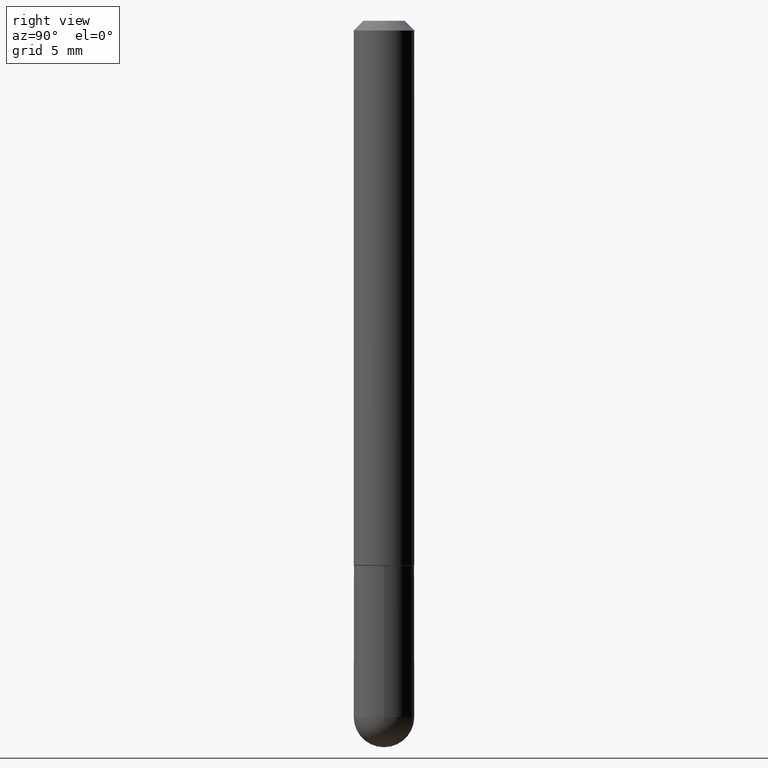
[diagram: clean part render]
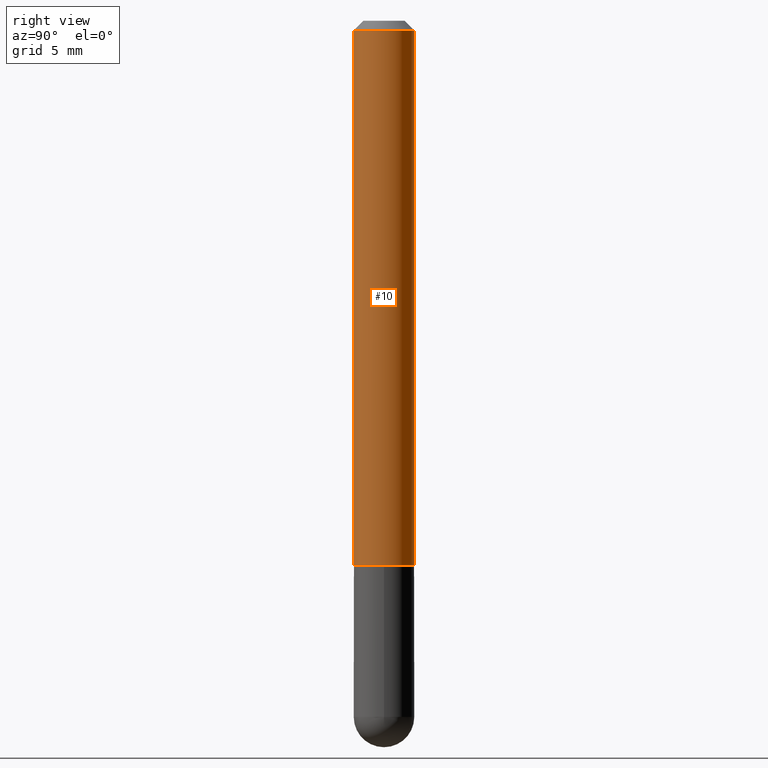
[diagram: same view with one face highlighted and labeled with its STEP entity id]
A machine part, right view. The second image highlights one B-rep face of the part: STEP entity #10.
In plain terms, the highlighted cylindrical surface (edge-blend (fillet) strip) has radius 1.5875 mm, axis along (-0, 0, 1).
Its self-contained STEP definition (entity closure, byte-faithful):
#6 = CIRCLE ( 'NONE', #140, 0.06250000000000005551 ) ;
#10 = ADVANCED_FACE ( 'NONE', ( #366 ), #310, .T. ) ;
#16 = EDGE_CURVE ( 'NONE', #294, #335, #121, .T. ) ;
#19 = ORIENTED_EDGE ( 'NONE', *, *, #321, .F. ) ;
#42 = LINE ( 'NONE', #203, #337 ) ;
#48 = ORIENTED_EDGE ( 'NONE', *, *, #231, .T. ) ;
#53 = EDGE_LOOP ( 'NONE', ( #48, #254, #327, #19 ) ) ;
#83 = CARTESIAN_POINT ( 'NONE',  ( 4.364351673553917187E-16, 0.06249999999999988204, -0.02000000000000028491 ) ) ;
#85 = DIRECTION ( 'NONE',  ( -6.982962677686265922E-15, -1.000000000000000000, 3.483106191921938315E-15 ) ) ;
#113 = CARTESIAN_POINT ( 'NONE',  ( -4.364351673553642565E-16, -0.06250000000000394129, -1.123999999999999888 ) ) ;
#118 = VECTOR ( 'NONE', #186, 39.37007874015748143 ) ;
#121 = LINE ( 'NONE', #222, #118 ) ;
#140 = AXIS2_PLACEMENT_3D ( 'NONE', #232, #200, #316 ) ;
#157 = DIRECTION ( 'NONE',  ( -2.466183177392588152E-29, 3.461817180285283687E-15, 1.000000000000000000 ) ) ;
#171 = DIRECTION ( 'NONE',  ( -2.466183177392588152E-29, 3.461817180285283687E-15, 1.000000000000000000 ) ) ;
#186 = DIRECTION ( 'NONE',  ( -2.466183177392588152E-29, 3.461817180285283687E-15, 1.000000000000000000 ) ) ;
#200 = DIRECTION ( 'NONE',  ( -2.466183177392588152E-29, 3.461817180285283687E-15, 1.000000000000000000 ) ) ;
#203 = CARTESIAN_POINT ( 'NONE',  ( -4.364351673553916201E-16, -0.06250000000000000000, 2.163635737678302058E-16 ) ) ;
#208 = DIRECTION ( 'NONE',  ( -2.466183177392588152E-29, 3.461817180285283687E-15, 1.000000000000000000 ) ) ;
#216 = AXIS2_PLACEMENT_3D ( 'NONE', #361, #208, #85 ) ;
#222 = CARTESIAN_POINT ( 'NONE',  ( 4.440892098500625669E-16, 0.06250000000000000000, -2.163635737678302058E-16 ) ) ;
#226 = CIRCLE ( 'NONE', #216, 0.06249999999999995143 ) ;
#227 = DIRECTION ( 'NONE',  ( -6.982962677686265922E-15, -1.000000000000000000, 3.461817180285283292E-15 ) ) ;
#231 = EDGE_CURVE ( 'NONE', #329, #294, #6, .T. ) ;
#232 = CARTESIAN_POINT ( 'NONE',  ( 2.771989891389269485E-29, -3.891082510640658844E-15, -1.124000000000000110 ) ) ;
#233 = CARTESIAN_POINT ( 'NONE',  ( 4.440892098500769143E-16, 0.06249999999999615585, -1.124000000000000332 ) ) ;
#254 = ORIENTED_EDGE ( 'NONE', *, *, #16, .T. ) ;
#274 = CARTESIAN_POINT ( 'NONE',  ( 0.000000000000000000, 0.000000000000000000, 0.000000000000000000 ) ) ;
#294 = VERTEX_POINT ( 'NONE', #233 ) ;
#301 = CARTESIAN_POINT ( 'NONE',  ( -4.287811248607198352E-16, -0.06250000000000001388, -0.01999999999999985123 ) ) ;
#310 = CYLINDRICAL_SURFACE ( 'NONE', #348, 0.06250000000000000000 ) ;
#316 = DIRECTION ( 'NONE',  ( -6.982962677686265133E-15, -1.000000000000000000, 4.370956789862817205E-15 ) ) ;
#321 = EDGE_CURVE ( 'NONE', #329, #362, #42, .T. ) ;
#327 = ORIENTED_EDGE ( 'NONE', *, *, #356, .F. ) ;
#329 = VERTEX_POINT ( 'NONE', #113 ) ;
#335 = VERTEX_POINT ( 'NONE', #83 ) ;
#337 = VECTOR ( 'NONE', #171, 39.37007874015748143 ) ;
#348 = AXIS2_PLACEMENT_3D ( 'NONE', #274, #157, #227 ) ;
#356 = EDGE_CURVE ( 'NONE', #362, #335, #226, .T. ) ;
#361 = CARTESIAN_POINT ( 'NONE',  ( 4.932366354785193785E-31, -6.923634360570589906E-17, -0.02000000000000006981 ) ) ;
#362 = VERTEX_POINT ( 'NONE', #301 ) ;
#366 = FACE_OUTER_BOUND ( 'NONE', #53, .T. ) ;